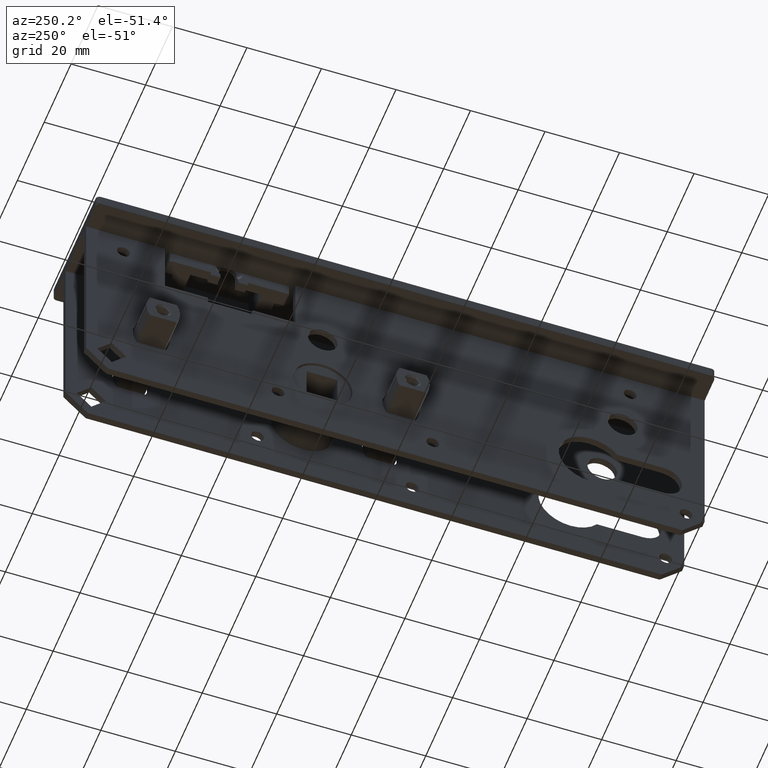
[diagram: clean part render]
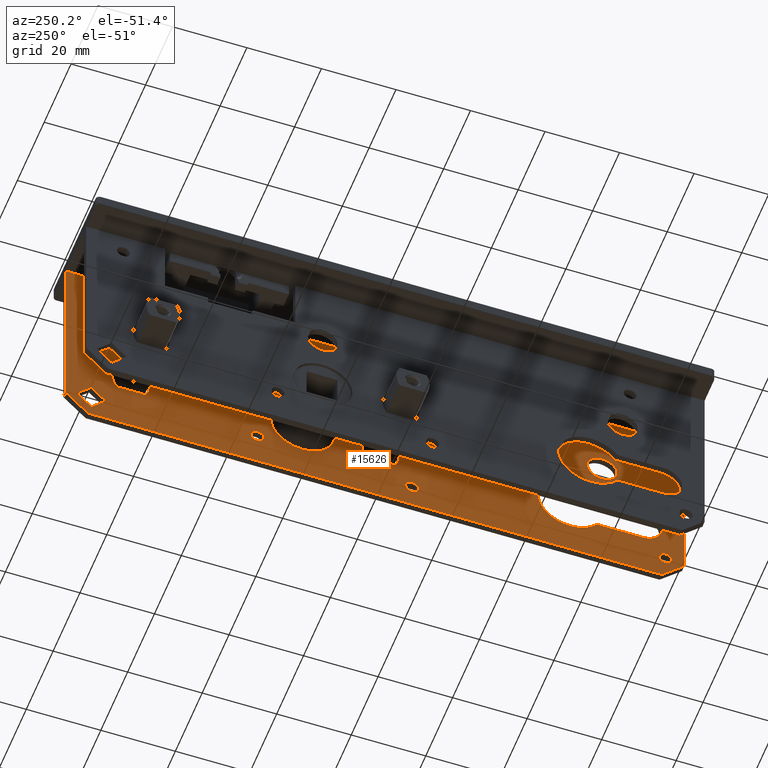
[diagram: same view with one face highlighted and labeled with its STEP entity id]
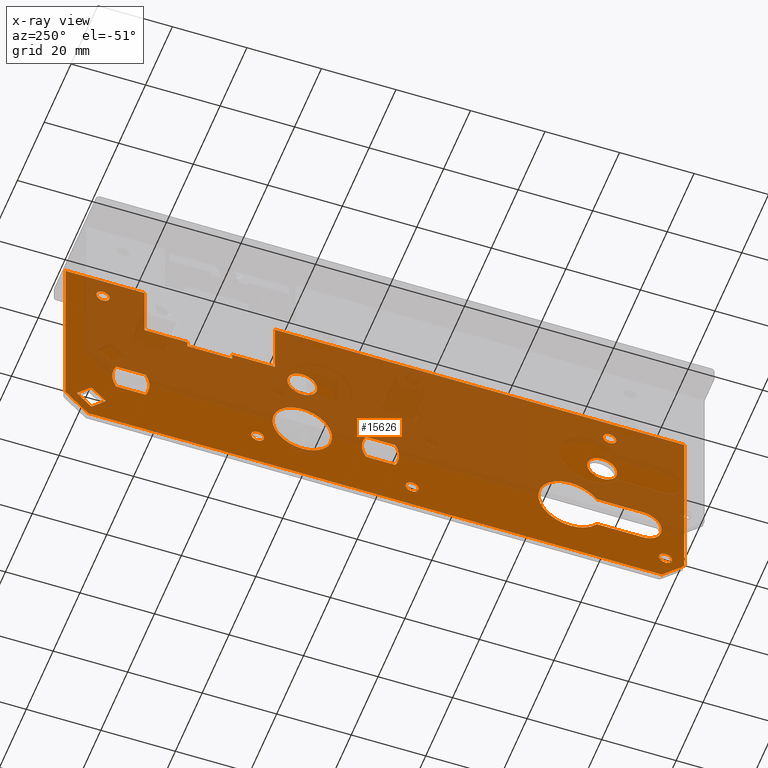
[diagram: x-ray of the same camera — body ghosted, the highlighted face saturated]
A machine part, auxiliary view. The second image highlights one B-rep face of the part: STEP entity #15626.
The next image is the same camera in x-ray: the body ghosted, the highlighted face saturated — about 60% of this face is hidden behind the body in this view.
In plain terms, the highlighted planar face has unit normal (1, -0, 0).
Its self-contained STEP definition (entity closure, byte-faithful):
#44 = CARTESIAN_POINT ( 'NONE',  ( 6.749999999999968026, 1.499999999999974465, -38.49999999999999289 ) ) ;
#150 = CIRCLE ( 'NONE', #21685, 8.000000000000007105 ) ;
#152 = VERTEX_POINT ( 'NONE', #18623 ) ;
#307 = CARTESIAN_POINT ( 'NONE',  ( 6.749999999999979572, 82.99999999999997158, -18.09999999999999076 ) ) ;
#315 = DIRECTION ( 'NONE',  ( -0.000000000000000000, -0.000000000000000000, 1.000000000000000000 ) ) ;
#347 = ORIENTED_EDGE ( 'NONE', *, *, #21794, .T. ) ;
#358 = VERTEX_POINT ( 'NONE', #11238 ) ;
#418 = CIRCLE ( 'NONE', #6160, 8.650000000000005684 ) ;
#441 = AXIS2_PLACEMENT_3D ( 'NONE', #18291, #21575, #19870 ) ;
#592 = AXIS2_PLACEMENT_3D ( 'NONE', #8462, #5016, #21658 ) ;
#726 = CARTESIAN_POINT ( 'NONE',  ( 6.749999999999979572, 82.99999999999998579, -1.500000000000000000 ) ) ;
#739 = CARTESIAN_POINT ( 'NONE',  ( 6.749999999999971578, 33.24999999999996447, -46.50000000000000000 ) ) ;
#756 = DIRECTION ( 'NONE',  ( 1.000000000000000000, -1.230009555171454603E-16, 0.000000000000000000 ) ) ;
#866 = CIRCLE ( 'NONE', #3154, 8.000000000000000000 ) ;
#925 = DIRECTION ( 'NONE',  ( 1.717547996016636297E-16, 1.000000000000000000, 0.000000000000000000 ) ) ;
#977 = FACE_BOUND ( 'NONE', #9563, .T. ) ;
#1065 = CIRCLE ( 'NONE', #13143, 1.749999999999996447 ) ;
#1121 = CARTESIAN_POINT ( 'NONE',  ( 6.749999999999978684, 72.22182540694797126, -49.61091270347398563 ) ) ;
#1205 = VERTEX_POINT ( 'NONE', #8249 ) ;
#1231 = ORIENTED_EDGE ( 'NONE', *, *, #14923, .T. ) ;
#1315 = DIRECTION ( 'NONE',  ( 1.230009555171454603E-16, 1.000000000000000000, 0.000000000000000000 ) ) ;
#1369 = EDGE_CURVE ( 'NONE', #15615, #3265, #11382, .T. ) ;
#1563 = VECTOR ( 'NONE', #8817, 1000.000000000000000 ) ;
#1574 = CARTESIAN_POINT ( 'NONE',  ( 6.749999999999978684, 73.00000000000000000, -7.500000000000007105 ) ) ;
#1757 = EDGE_LOOP ( 'NONE', ( #17173 ) ) ;
#1824 = ORIENTED_EDGE ( 'NONE', *, *, #10831, .T. ) ;
#1891 = VERTEX_POINT ( 'NONE', #12713 ) ;
#1905 = EDGE_CURVE ( 'NONE', #15615, #5013, #13957, .T. ) ;
#1977 = CARTESIAN_POINT ( 'NONE',  ( 6.749999999999975131, 38.34500000000000597, -18.10000000000000142 ) ) ;
#2011 = ORIENTED_EDGE ( 'NONE', *, *, #7604, .T. ) ;
#2205 = VECTOR ( 'NONE', #14447, 1000.000000000000000 ) ;
#2206 = CARTESIAN_POINT ( 'NONE',  ( 6.749999999999978684, 79.99999999999998579, -49.61091270347398563 ) ) ;
#2235 = VERTEX_POINT ( 'NONE', #9707 ) ;
#2255 = VERTEX_POINT ( 'NONE', #6798 ) ;
#2280 = ORIENTED_EDGE ( 'NONE', *, *, #17090, .T. ) ;
#2369 = CARTESIAN_POINT ( 'NONE',  ( 6.749999999999979572, 82.99999999999998579, -33.44999999999999574 ) ) ;
#2483 = EDGE_CURVE ( 'NONE', #21842, #8173, #3054, .T. ) ;
#2602 = AXIS2_PLACEMENT_3D ( 'NONE', #10785, #8873, #20649 ) ;
#2675 = CARTESIAN_POINT ( 'NONE',  ( 6.749999999999961808, -57.00000000000000711, -20.50000000000000355 ) ) ;
#2842 = ORIENTED_EDGE ( 'NONE', *, *, #10966, .T. ) ;
#2922 = VERTEX_POINT ( 'NONE', #12559 ) ;
#3037 = CARTESIAN_POINT ( 'NONE',  ( 6.749999999999978684, 69.42820323027548568, -34.50000000000000711 ) ) ;
#3050 = CARTESIAN_POINT ( 'NONE',  ( 6.749999999999973355, 26.84500000000000242, -16.50000000000000000 ) ) ;
#3054 = LINE ( 'NONE', #8511, #10534 ) ;
#3154 = AXIS2_PLACEMENT_3D ( 'NONE', #20338, #8637, #15333 ) ;
#3211 = DIRECTION ( 'NONE',  ( 0.000000000000000000, 1.000000000000000000, 0.000000000000000000 ) ) ;
#3265 = VERTEX_POINT ( 'NONE', #3418 ) ;
#3405 = DIRECTION ( 'NONE',  ( 1.000000000000000000, -1.230009555171454603E-16, 0.000000000000000000 ) ) ;
#3413 = DIRECTION ( 'NONE',  ( -0.000000000000000000, -0.000000000000000000, 1.000000000000000000 ) ) ;
#3418 = CARTESIAN_POINT ( 'NONE',  ( 6.749999999999978684, 77.00000000000000000, -56.50000000000000000 ) ) ;
#3435 = EDGE_CURVE ( 'NONE', #6235, #8173, #14757, .T. ) ;
#3470 = VERTEX_POINT ( 'NONE', #739 ) ;
#3564 = VECTOR ( 'NONE', #5631, 1000.000000000000000 ) ;
#3730 = EDGE_CURVE ( 'NONE', #12430, #18650, #17111, .T. ) ;
#3731 = VERTEX_POINT ( 'NONE', #2675 ) ;
#3779 = EDGE_CURVE ( 'NONE', #358, #21842, #17372, .T. ) ;
#3800 = ORIENTED_EDGE ( 'NONE', *, *, #8014, .T. ) ;
#3960 = CARTESIAN_POINT ( 'NONE',  ( 6.749999999999968026, -4.500000000000025757, -38.50000000000000000 ) ) ;
#4070 = LINE ( 'NONE', #6049, #9162 ) ;
#4092 = EDGE_CURVE ( 'NONE', #6755, #152, #13413, .T. ) ;
#4123 = CARTESIAN_POINT ( 'NONE',  ( 6.749999999999979572, 82.99999999999997158, -43.54999999999993321 ) ) ;
#4141 = DIRECTION ( 'NONE',  ( 1.230009555171454603E-16, 1.000000000000000000, 0.000000000000000000 ) ) ;
#4170 = ORIENTED_EDGE ( 'NONE', *, *, #20546, .T. ) ;
#4182 = VECTOR ( 'NONE', #19971, 1000.000000000000114 ) ;
#4198 = CARTESIAN_POINT ( 'NONE',  ( 6.749999999999957367, -78.00000000000002842, -49.50000000000000000 ) ) ;
#4291 = CARTESIAN_POINT ( 'NONE',  ( 6.749999999999975131, 500000.0000000000582, -16.50000000000000000 ) ) ;
#4326 = DIRECTION ( 'NONE',  ( -7.816872077406231083E-17, -0.7071067811865459074, 0.7071067811865491270 ) ) ;
#4384 = CARTESIAN_POINT ( 'NONE',  ( 6.749999999999960920, -59.52281994643178820, -33.44999999999999574 ) ) ;
#4405 = EDGE_LOOP ( 'NONE', ( #10033 ) ) ;
#4414 = EDGE_LOOP ( 'NONE', ( #347 ) ) ;
#4427 = EDGE_LOOP ( 'NONE', ( #2011, #11391, #8743, #5581 ) ) ;
#4447 = FACE_BOUND ( 'NONE', #4427, .T. ) ;
#4552 = LINE ( 'NONE', #2369, #21495 ) ;
#4647 = ORIENTED_EDGE ( 'NONE', *, *, #3435, .T. ) ;
#4658 = VERTEX_POINT ( 'NONE', #9148 ) ;
#4667 = EDGE_CURVE ( 'NONE', #358, #15644, #9023, .T. ) ;
#4696 = DIRECTION ( 'NONE',  ( -1.230009555171454603E-16, -1.000000000000000000, 0.000000000000000000 ) ) ;
#4708 = EDGE_CURVE ( 'NONE', #12034, #12034, #10337, .T. ) ;
#4735 = CARTESIAN_POINT ( 'NONE',  ( 6.749999999999973355, 26.84500000000000242, -1.500000000000000000 ) ) ;
#4780 = EDGE_CURVE ( 'NONE', #11503, #11503, #6316, .T. ) ;
#4783 = VERTEX_POINT ( 'NONE', #19569 ) ;
#4848 = DIRECTION ( 'NONE',  ( 1.002730332934569904E-16, 1.000000000000000000, 0.000000000000000000 ) ) ;
#4939 = EDGE_CURVE ( 'NONE', #9062, #6550, #418, .T. ) ;
#5013 = VERTEX_POINT ( 'NONE', #7181 ) ;
#5016 = DIRECTION ( 'NONE',  ( 1.000000000000000000, -1.230009555171454603E-16, 0.000000000000000000 ) ) ;
#5050 = CARTESIAN_POINT ( 'NONE',  ( 6.749999999999971578, 2.428203230275485680, -34.50000000000000000 ) ) ;
#5139 = DIRECTION ( 'NONE',  ( 1.084202172485503941E-16, 1.000000000000000000, 0.000000000000000000 ) ) ;
#5281 = VECTOR ( 'NONE', #11812, 1000.000000000000000 ) ;
#5318 = ORIENTED_EDGE ( 'NONE', *, *, #19510, .T. ) ;
#5457 = ORIENTED_EDGE ( 'NONE', *, *, #9716, .T. ) ;
#5540 = FACE_BOUND ( 'NONE', #4414, .T. ) ;
#5581 = ORIENTED_EDGE ( 'NONE', *, *, #12091, .T. ) ;
#5631 = DIRECTION ( 'NONE',  ( 1.230009555171454603E-16, 1.000000000000000000, 5.606199371646698603E-16 ) ) ;
#5825 = CARTESIAN_POINT ( 'NONE',  ( 6.749999999999957367, -76.25000000000002842, -49.50000000000000000 ) ) ;
#5867 = CARTESIAN_POINT ( 'NONE',  ( 6.749999999999979572, 82.99999999999998579, -42.49999999999999289 ) ) ;
#5876 = CARTESIAN_POINT ( 'NONE',  ( 6.749999999999975131, 62.49999999999997158, -38.50000000000000711 ) ) ;
#6049 = CARTESIAN_POINT ( 'NONE',  ( 6.749999999999978684, 78.05545635173697860, -51.55545635173699281 ) ) ;
#6051 = ORIENTED_EDGE ( 'NONE', *, *, #6621, .F. ) ;
#6083 = EDGE_CURVE ( 'NONE', #1891, #1891, #6337, .T. ) ;
#6089 = CARTESIAN_POINT ( 'NONE',  ( 6.749999999999961808, -77.00000000000004263, -56.50000000000000000 ) ) ;
#6129 = ORIENTED_EDGE ( 'NONE', *, *, #21860, .T. ) ;
#6160 = AXIS2_PLACEMENT_3D ( 'NONE', #18347, #15146, #4848 ) ;
#6235 = VERTEX_POINT ( 'NONE', #16500 ) ;
#6316 = CIRCLE ( 'NONE', #20153, 1.750000000000001554 ) ;
#6337 = CIRCLE ( 'NONE', #2602, 4.000000000000000000 ) ;
#6550 = VERTEX_POINT ( 'NONE', #4384 ) ;
#6621 = EDGE_CURVE ( 'NONE', #20840, #3265, #8480, .T. ) ;
#6684 = CARTESIAN_POINT ( 'NONE',  ( 6.749999999999971578, 2.428203230275486568, -42.49999999999999289 ) ) ;
#6755 = VERTEX_POINT ( 'NONE', #2206 ) ;
#6798 = CARTESIAN_POINT ( 'NONE',  ( 6.749999999999968914, -5.428203230275540747, -34.50000000000000000 ) ) ;
#6817 = VECTOR ( 'NONE', #3413, 1000.000000000000000 ) ;
#6870 = FACE_BOUND ( 'NONE', #21967, .T. ) ;
#6987 = CARTESIAN_POINT ( 'NONE',  ( 6.749999999999975131, 50.34500000000000597, -18.09999999999999787 ) ) ;
#7096 = CARTESIAN_POINT ( 'NONE',  ( 6.749999999999960920, -71.90000000000001990, -33.44999999999999574 ) ) ;
#7114 = VECTOR ( 'NONE', #16860, 1000.000000000000114 ) ;
#7134 = CARTESIAN_POINT ( 'NONE',  ( 6.749999999999960920, -59.52281994643178820, -43.55000000000001847 ) ) ;
#7181 = CARTESIAN_POINT ( 'NONE',  ( 6.749999999999979572, 82.99999999999998579, -1.500000000000000000 ) ) ;
#7218 = EDGE_CURVE ( 'NONE', #17224, #9729, #14778, .T. ) ;
#7314 = DIRECTION ( 'NONE',  ( -8.697480973859844836E-17, -0.7071067811865474617, -0.7071067811865474617 ) ) ;
#7388 = CARTESIAN_POINT ( 'NONE',  ( 6.749999999999979572, 84.94454364826299297, -54.55545635173699281 ) ) ;
#7395 = EDGE_LOOP ( 'NONE', ( #18364, #2842, #1231, #21062 ) ) ;
#7409 = FACE_BOUND ( 'NONE', #7395, .T. ) ;
#7604 = EDGE_CURVE ( 'NONE', #10503, #12430, #13525, .T. ) ;
#7637 = DIRECTION ( 'NONE',  ( -0.000000000000000000, -1.000000000000000000, -0.000000000000000000 ) ) ;
#7823 = LINE ( 'NONE', #726, #2205 ) ;
#7907 = AXIS2_PLACEMENT_3D ( 'NONE', #1574, #11867, #11942 ) ;
#8014 = EDGE_CURVE ( 'NONE', #4783, #9062, #19714, .T. ) ;
#8173 = VERTEX_POINT ( 'NONE', #4735 ) ;
#8249 = CARTESIAN_POINT ( 'NONE',  ( 6.749999999999975131, 61.84500000000525688, -16.50000000000000000 ) ) ;
#8386 = ORIENTED_EDGE ( 'NONE', *, *, #17969, .T. ) ;
#8462 = CARTESIAN_POINT ( 'NONE',  ( 6.749999999999960920, -61.00000000000001421, -20.50000000000000355 ) ) ;
#8470 = VERTEX_POINT ( 'NONE', #19465 ) ;
#8480 = LINE ( 'NONE', #19976, #14025 ) ;
#8511 = CARTESIAN_POINT ( 'NONE',  ( 6.749999999999973355, 26.84500000000000242, -56.50000000000000000 ) ) ;
#8525 = EDGE_LOOP ( 'NONE', ( #8386, #9741, #13737, #2280, #5318, #12890, #15249, #6051, #8671, #18115, #4647, #9786, #16705, #18499 ) ) ;
#8637 = DIRECTION ( 'NONE',  ( 1.000000000000000000, -1.230009555171454603E-16, 0.000000000000000000 ) ) ;
#8671 = ORIENTED_EDGE ( 'NONE', *, *, #14055, .T. ) ;
#8743 = ORIENTED_EDGE ( 'NONE', *, *, #9782, .T. ) ;
#8817 = DIRECTION ( 'NONE',  ( -5.334316127579277824E-31, -4.336808689942016158E-15, 1.000000000000000000 ) ) ;
#8831 = EDGE_CURVE ( 'NONE', #1205, #18944, #20098, .T. ) ;
#8873 = DIRECTION ( 'NONE',  ( 1.000000000000000000, -1.230009555171454603E-16, 0.000000000000000000 ) ) ;
#8959 = VECTOR ( 'NONE', #14656, 1000.000000000000000 ) ;
#9020 = CARTESIAN_POINT ( 'NONE',  ( 6.749999999999960920, -83.00000000000001421, -56.50000000000000000 ) ) ;
#9022 = FACE_BOUND ( 'NONE', #4405, .T. ) ;
#9023 = LINE ( 'NONE', #15637, #10870 ) ;
#9062 = VERTEX_POINT ( 'NONE', #7134 ) ;
#9148 = CARTESIAN_POINT ( 'NONE',  ( 6.749999999999978684, 69.42820323027548568, -42.50000000000000000 ) ) ;
#9162 = VECTOR ( 'NONE', #19770, 1000.000000000000114 ) ;
#9202 = DIRECTION ( 'NONE',  ( 1.000000000000000000, -1.230009555171454603E-16, 0.000000000000000000 ) ) ;
#9534 = EDGE_CURVE ( 'NONE', #21105, #18944, #17457, .T. ) ;
#9563 = EDGE_LOOP ( 'NONE', ( #3800, #16507, #14467, #5457 ) ) ;
#9575 = EDGE_LOOP ( 'NONE', ( #15785 ) ) ;
#9707 = CARTESIAN_POINT ( 'NONE',  ( 6.749999999999977796, 61.84500000000000597, -1.500000000000000000 ) ) ;
#9716 = EDGE_CURVE ( 'NONE', #13036, #4783, #16945, .T. ) ;
#9729 = VERTEX_POINT ( 'NONE', #12761 ) ;
#9741 = ORIENTED_EDGE ( 'NONE', *, *, #9534, .T. ) ;
#9782 = EDGE_CURVE ( 'NONE', #18650, #2255, #19579, .T. ) ;
#9786 = ORIENTED_EDGE ( 'NONE', *, *, #2483, .F. ) ;
#9791 = FACE_BOUND ( 'NONE', #18663, .T. ) ;
#9879 = VERTEX_POINT ( 'NONE', #21243 ) ;
#9910 = DIRECTION ( 'NONE',  ( 1.230009555171454603E-16, 1.000000000000000000, -0.000000000000000000 ) ) ;
#9954 = AXIS2_PLACEMENT_3D ( 'NONE', #44, #3405, #5139 ) ;
#10006 = EDGE_LOOP ( 'NONE', ( #12197 ) ) ;
#10033 = ORIENTED_EDGE ( 'NONE', *, *, #4708, .T. ) ;
#10116 = VECTOR ( 'NONE', #4696, 1000.000000000000000 ) ;
#10117 = CARTESIAN_POINT ( 'NONE',  ( 6.749999999999979572, 82.99999999999998579, -34.50000000000000711 ) ) ;
#10209 = EDGE_CURVE ( 'NONE', #8470, #6235, #15338, .T. ) ;
#10336 = FACE_BOUND ( 'NONE', #20478, .T. ) ;
#10337 = CIRCLE ( 'NONE', #21176, 1.750000000000001554 ) ;
#10355 = VECTOR ( 'NONE', #315, 1000.000000000000000 ) ;
#10443 = CIRCLE ( 'NONE', #7907, 1.750000000000001554 ) ;
#10503 = VERTEX_POINT ( 'NONE', #22026 ) ;
#10534 = VECTOR ( 'NONE', #21774, 1000.000000000000000 ) ;
#10650 = LINE ( 'NONE', #14475, #16699 ) ;
#10659 = ORIENTED_EDGE ( 'NONE', *, *, #7218, .T. ) ;
#10775 = DIRECTION ( 'NONE',  ( 0.000000000000000000, 0.000000000000000000, -1.000000000000000000 ) ) ;
#10785 = CARTESIAN_POINT ( 'NONE',  ( 6.749999999999971578, 19.49999999999997513, -20.50000000000000355 ) ) ;
#10831 = EDGE_CURVE ( 'NONE', #152, #17224, #15316, .T. ) ;
#10870 = VECTOR ( 'NONE', #10775, 1000.000000000000000 ) ;
#10966 = EDGE_CURVE ( 'NONE', #4658, #14147, #150, .T. ) ;
#11175 = CARTESIAN_POINT ( 'NONE',  ( 6.749999999999960920, -71.90000000000001990, -38.50000000000000000 ) ) ;
#11238 = CARTESIAN_POINT ( 'NONE',  ( 6.749999999999975131, 38.34499999999252395, -16.50000000000000000 ) ) ;
#11240 = CARTESIAN_POINT ( 'NONE',  ( 6.749999999999979572, 82.99999999999998579, -56.50000000000000000 ) ) ;
#11291 = VECTOR ( 'NONE', #1315, 1000.000000000000000 ) ;
#11366 = DIRECTION ( 'NONE',  ( 1.105472650720346645E-16, 1.000000000000000000, -0.000000000000000000 ) ) ;
#11382 = LINE ( 'NONE', #20465, #7114 ) ;
#11391 = ORIENTED_EDGE ( 'NONE', *, *, #3730, .T. ) ;
#11487 = VERTEX_POINT ( 'NONE', #15964 ) ;
#11503 = VERTEX_POINT ( 'NONE', #5825 ) ;
#11584 = AXIS2_PLACEMENT_3D ( 'NONE', #3960, #9202, #14273 ) ;
#11707 = CIRCLE ( 'NONE', #14209, 8.000000000000007105 ) ;
#11812 = DIRECTION ( 'NONE',  ( -1.230009555171454603E-16, -1.000000000000000000, 0.000000000000000000 ) ) ;
#11867 = DIRECTION ( 'NONE',  ( 1.000000000000000000, -1.230009555171454603E-16, 0.000000000000000000 ) ) ;
#11929 = CARTESIAN_POINT ( 'NONE',  ( 6.749999999999977796, 61.84500000000000597, -56.50000000000000000 ) ) ;
#11942 = DIRECTION ( 'NONE',  ( 0.000000000000000000, 1.000000000000000000, 0.000000000000000000 ) ) ;
#11992 = CARTESIAN_POINT ( 'NONE',  ( 6.749999999999976019, 50.34500000000017650, -56.50000000000014211 ) ) ;
#12034 = VERTEX_POINT ( 'NONE', #12777 ) ;
#12091 = EDGE_CURVE ( 'NONE', #2255, #10503, #21204, .T. ) ;
#12114 = PLANE ( 'NONE',  #14904 ) ;
#12197 = ORIENTED_EDGE ( 'NONE', *, *, #18599, .T. ) ;
#12430 = VERTEX_POINT ( 'NONE', #6684 ) ;
#12445 = FACE_BOUND ( 'NONE', #9575, .T. ) ;
#12559 = CARTESIAN_POINT ( 'NONE',  ( 6.749999999999972466, 27.49999999999997513, -38.50000000000000000 ) ) ;
#12578 = CARTESIAN_POINT ( 'NONE',  ( 6.749999999999960920, -63.00000000000001421, -7.500000000000007105 ) ) ;
#12713 = CARTESIAN_POINT ( 'NONE',  ( 6.749999999999972466, 23.49999999999997513, -20.50000000000000355 ) ) ;
#12761 = CARTESIAN_POINT ( 'NONE',  ( 6.749999999999978684, 76.11091270347397142, -53.50000000000000000 ) ) ;
#12777 = CARTESIAN_POINT ( 'NONE',  ( 6.749999999999960920, -61.25000000000001421, -7.500000000000007105 ) ) ;
#12890 = ORIENTED_EDGE ( 'NONE', *, *, #1905, .F. ) ;
#12901 = VECTOR ( 'NONE', #7637, 1000.000000000000000 ) ;
#13036 = VERTEX_POINT ( 'NONE', #7096 ) ;
#13138 = CARTESIAN_POINT ( 'NONE',  ( 6.749999999999979572, 81.05545635173697860, -58.44454364826300719 ) ) ;
#13143 = AXIS2_PLACEMENT_3D ( 'NONE', #19928, #16709, #3211 ) ;
#13377 = CARTESIAN_POINT ( 'NONE',  ( 6.749999999999975131, 61.57179676972446458, -42.50000000000000000 ) ) ;
#13413 = LINE ( 'NONE', #7388, #18930 ) ;
#13525 = LINE ( 'NONE', #5867, #21989 ) ;
#13644 = DIRECTION ( 'NONE',  ( 1.000000000000000000, -1.230009555171454603E-16, 0.000000000000000000 ) ) ;
#13676 = VECTOR ( 'NONE', #18018, 1000.000000000000000 ) ;
#13737 = ORIENTED_EDGE ( 'NONE', *, *, #8831, .F. ) ;
#13807 = DIRECTION ( 'NONE',  ( 1.230009555171454603E-16, 1.000000000000000000, 0.000000000000000000 ) ) ;
#13957 = LINE ( 'NONE', #11240, #8959 ) ;
#14025 = VECTOR ( 'NONE', #9910, 1000.000000000000000 ) ;
#14028 = FACE_BOUND ( 'NONE', #1757, .T. ) ;
#14055 = EDGE_CURVE ( 'NONE', #20840, #8470, #10650, .T. ) ;
#14129 = CARTESIAN_POINT ( 'NONE',  ( 6.749999999999975131, 500000.0000000000582, -16.50000000000000000 ) ) ;
#14147 = VERTEX_POINT ( 'NONE', #3037 ) ;
#14209 = AXIS2_PLACEMENT_3D ( 'NONE', #14437, #14519, #20999 ) ;
#14273 = DIRECTION ( 'NONE',  ( 1.084202172485504434E-16, 1.000000000000000000, 0.000000000000000000 ) ) ;
#14437 = CARTESIAN_POINT ( 'NONE',  ( 6.749999999999975131, 68.49999999999997158, -38.50000000000000711 ) ) ;
#14447 = DIRECTION ( 'NONE',  ( 1.230009555171454603E-16, 1.000000000000000000, -0.000000000000000000 ) ) ;
#14452 = ORIENTED_EDGE ( 'NONE', *, *, #4092, .T. ) ;
#14467 = ORIENTED_EDGE ( 'NONE', *, *, #21669, .T. ) ;
#14475 = CARTESIAN_POINT ( 'NONE',  ( 6.749999999999961808, -77.00000000000004263, -56.50000000000000000 ) ) ;
#14519 = DIRECTION ( 'NONE',  ( 1.000000000000000000, -1.230009555171454603E-16, 0.000000000000000000 ) ) ;
#14656 = DIRECTION ( 'NONE',  ( -0.000000000000000000, -0.000000000000000000, 1.000000000000000000 ) ) ;
#14757 = LINE ( 'NONE', #14791, #18693 ) ;
#14778 = LINE ( 'NONE', #13138, #4182 ) ;
#14791 = CARTESIAN_POINT ( 'NONE',  ( 6.749999999999973355, 26.84500000000000242, -1.500000000000000000 ) ) ;
#14859 = EDGE_CURVE ( 'NONE', #17108, #19255, #11707, .T. ) ;
#14904 = AXIS2_PLACEMENT_3D ( 'NONE', #15482, #13644, #13807 ) ;
#14923 = EDGE_CURVE ( 'NONE', #14147, #17108, #20065, .T. ) ;
#15146 = DIRECTION ( 'NONE',  ( 1.000000000000000000, -1.230009555171454603E-16, 0.000000000000000000 ) ) ;
#15249 = ORIENTED_EDGE ( 'NONE', *, *, #1369, .T. ) ;
#15316 = LINE ( 'NONE', #21793, #20584 ) ;
#15333 = DIRECTION ( 'NONE',  ( 1.084202172485504434E-16, 1.000000000000000000, 0.000000000000000000 ) ) ;
#15338 = LINE ( 'NONE', #9020, #10355 ) ;
#15482 = CARTESIAN_POINT ( 'NONE',  ( 6.749999999999979572, 82.99999999999998579, -56.50000000000000000 ) ) ;
#15497 = ORIENTED_EDGE ( 'NONE', *, *, #6083, .T. ) ;
#15498 = LINE ( 'NONE', #17822, #11291 ) ;
#15534 = EDGE_LOOP ( 'NONE', ( #6129 ) ) ;
#15615 = VERTEX_POINT ( 'NONE', #20480 ) ;
#15626 = ADVANCED_FACE ( 'NONE', ( #10336, #5540, #977, #18453, #14028, #16381, #12445, #9791, #9022, #7409, #4447, #6870, #17423 ), #12114, .F. ) ;
#15637 = CARTESIAN_POINT ( 'NONE',  ( 6.749999999999975131, 38.34500000000000597, -56.50000000000000000 ) ) ;
#15644 = VERTEX_POINT ( 'NONE', #1977 ) ;
#15735 = DIRECTION ( 'NONE',  ( -8.697480973859844836E-17, -0.7071067811865474617, 0.7071067811865474617 ) ) ;
#15785 = ORIENTED_EDGE ( 'NONE', *, *, #20294, .T. ) ;
#15964 = CARTESIAN_POINT ( 'NONE',  ( 6.749999999999968026, -8.250000000000026645, -49.50000000000000000 ) ) ;
#16128 = DIRECTION ( 'NONE',  ( 1.000000000000000000, -1.230009555171454603E-16, 0.000000000000000000 ) ) ;
#16260 = CARTESIAN_POINT ( 'NONE',  ( 6.749999999999979572, 82.99999999999998579, -34.50000000000000000 ) ) ;
#16381 = FACE_BOUND ( 'NONE', #15534, .T. ) ;
#16500 = CARTESIAN_POINT ( 'NONE',  ( 6.749999999999960920, -83.00000000000001421, -1.500000000000000000 ) ) ;
#16507 = ORIENTED_EDGE ( 'NONE', *, *, #4939, .T. ) ;
#16519 = CIRCLE ( 'NONE', #441, 1.749999999999994671 ) ;
#16580 = LINE ( 'NONE', #11929, #6817 ) ;
#16699 = VECTOR ( 'NONE', #4326, 1000.000000000000114 ) ;
#16705 = ORIENTED_EDGE ( 'NONE', *, *, #3779, .F. ) ;
#16709 = DIRECTION ( 'NONE',  ( 1.000000000000000000, -1.230009555171454603E-16, 0.000000000000000000 ) ) ;
#16819 = CARTESIAN_POINT ( 'NONE',  ( 6.749999999999977796, 61.57179676972446458, -34.50000000000000711 ) ) ;
#16860 = DIRECTION ( 'NONE',  ( -8.697480973859818952E-17, -0.7071067811865455743, -0.7071067811865495711 ) ) ;
#16945 = CIRCLE ( 'NONE', #18917, 5.050000000000013145 ) ;
#17090 = EDGE_CURVE ( 'NONE', #1205, #2235, #16580, .T. ) ;
#17108 = VERTEX_POINT ( 'NONE', #16819 ) ;
#17111 = CIRCLE ( 'NONE', #11584, 8.000000000000000000 ) ;
#17173 = ORIENTED_EDGE ( 'NONE', *, *, #4780, .T. ) ;
#17181 = ORIENTED_EDGE ( 'NONE', *, *, #21903, .T. ) ;
#17224 = VERTEX_POINT ( 'NONE', #1121 ) ;
#17330 = VECTOR ( 'NONE', #18563, 1000.000000000000000 ) ;
#17372 = LINE ( 'NONE', #14129, #12901 ) ;
#17392 = DIRECTION ( 'NONE',  ( -1.230009555171454603E-16, -1.000000000000000000, 0.000000000000000000 ) ) ;
#17423 = FACE_OUTER_BOUND ( 'NONE', #8525, .T. ) ;
#17457 = LINE ( 'NONE', #11992, #1563 ) ;
#17685 = DIRECTION ( 'NONE',  ( 1.084202172485503448E-16, 1.000000000000000000, 0.000000000000000000 ) ) ;
#17787 = DIRECTION ( 'NONE',  ( 0.000000000000000000, 1.000000000000000000, 0.000000000000000000 ) ) ;
#17822 = CARTESIAN_POINT ( 'NONE',  ( 6.749999999999979572, 82.99999999999998579, -42.50000000000000000 ) ) ;
#17969 = EDGE_CURVE ( 'NONE', #15644, #21105, #21845, .T. ) ;
#18018 = DIRECTION ( 'NONE',  ( -0.000000000000000000, -1.000000000000000000, -0.000000000000000000 ) ) ;
#18035 = CIRCLE ( 'NONE', #592, 4.000000000000003553 ) ;
#18115 = ORIENTED_EDGE ( 'NONE', *, *, #10209, .T. ) ;
#18291 = CARTESIAN_POINT ( 'NONE',  ( 6.749999999999971578, 31.49999999999997158, -46.50000000000000000 ) ) ;
#18347 = CARTESIAN_POINT ( 'NONE',  ( 6.749999999999960920, -52.50000000000002132, -38.50000000000000000 ) ) ;
#18364 = ORIENTED_EDGE ( 'NONE', *, *, #19638, .T. ) ;
#18453 = FACE_BOUND ( 'NONE', #10006, .T. ) ;
#18499 = ORIENTED_EDGE ( 'NONE', *, *, #4667, .T. ) ;
#18563 = DIRECTION ( 'NONE',  ( 1.230009555171454603E-16, 1.000000000000000000, 2.891205793294677833E-16 ) ) ;
#18599 = EDGE_CURVE ( 'NONE', #2922, #2922, #866, .T. ) ;
#18623 = CARTESIAN_POINT ( 'NONE',  ( 6.749999999999978684, 76.11091270347397142, -45.72182540694797837 ) ) ;
#18650 = VERTEX_POINT ( 'NONE', #5050 ) ;
#18663 = EDGE_LOOP ( 'NONE', ( #17181 ) ) ;
#18693 = VECTOR ( 'NONE', #11366, 1000.000000000000000 ) ;
#18917 = AXIS2_PLACEMENT_3D ( 'NONE', #11175, #19441, #925 ) ;
#18930 = VECTOR ( 'NONE', #15735, 1000.000000000000114 ) ;
#18944 = VERTEX_POINT ( 'NONE', #21895 ) ;
#19255 = VERTEX_POINT ( 'NONE', #13377 ) ;
#19441 = DIRECTION ( 'NONE',  ( 1.000000000000000000, -1.230009555171454603E-16, 0.000000000000000000 ) ) ;
#19465 = CARTESIAN_POINT ( 'NONE',  ( 6.749999999999960920, -83.00000000000001421, -50.49999999999999289 ) ) ;
#19510 = EDGE_CURVE ( 'NONE', #2235, #5013, #7823, .T. ) ;
#19569 = CARTESIAN_POINT ( 'NONE',  ( 6.749999999999960920, -71.90000000000001990, -43.55000000000001847 ) ) ;
#19579 = LINE ( 'NONE', #16260, #10116 ) ;
#19638 = EDGE_CURVE ( 'NONE', #19255, #4658, #15498, .T. ) ;
#19714 = LINE ( 'NONE', #4123, #3564 ) ;
#19770 = DIRECTION ( 'NONE',  ( 8.697480973859844836E-17, 0.7071067811865474617, 0.7071067811865474617 ) ) ;
#19870 = DIRECTION ( 'NONE',  ( 0.000000000000000000, 1.000000000000000000, 0.000000000000000000 ) ) ;
#19928 = CARTESIAN_POINT ( 'NONE',  ( 6.749999999999968026, -10.00000000000002309, -49.50000000000000000 ) ) ;
#19971 = DIRECTION ( 'NONE',  ( 8.697480973859844836E-17, 0.7071067811865474617, -0.7071067811865474617 ) ) ;
#19976 = CARTESIAN_POINT ( 'NONE',  ( 6.749999999999979572, 82.99999999999998579, -56.50000000000000000 ) ) ;
#20065 = LINE ( 'NONE', #10117, #5281 ) ;
#20098 = LINE ( 'NONE', #4291, #13676 ) ;
#20153 = AXIS2_PLACEMENT_3D ( 'NONE', #4198, #16128, #17787 ) ;
#20294 = EDGE_CURVE ( 'NONE', #3470, #3470, #16519, .T. ) ;
#20338 = CARTESIAN_POINT ( 'NONE',  ( 6.749999999999971578, 19.49999999999997513, -38.50000000000000000 ) ) ;
#20465 = CARTESIAN_POINT ( 'NONE',  ( 6.749999999999978684, 77.00000000000000000, -56.50000000000000000 ) ) ;
#20478 = EDGE_LOOP ( 'NONE', ( #15497 ) ) ;
#20480 = CARTESIAN_POINT ( 'NONE',  ( 6.749999999999979572, 82.99999999999998579, -50.49999999999997868 ) ) ;
#20546 = EDGE_CURVE ( 'NONE', #9729, #6755, #4070, .T. ) ;
#20584 = VECTOR ( 'NONE', #7314, 1000.000000000000114 ) ;
#20649 = DIRECTION ( 'NONE',  ( 2.168404344971008868E-16, 1.000000000000000000, 0.000000000000000000 ) ) ;
#20840 = VERTEX_POINT ( 'NONE', #6089 ) ;
#20999 = DIRECTION ( 'NONE',  ( 1.084202172485503448E-16, 1.000000000000000000, 0.000000000000000000 ) ) ;
#21003 = DIRECTION ( 'NONE',  ( 1.000000000000000000, -1.230009555171454603E-16, 0.000000000000000000 ) ) ;
#21062 = ORIENTED_EDGE ( 'NONE', *, *, #14859, .T. ) ;
#21105 = VERTEX_POINT ( 'NONE', #6987 ) ;
#21176 = AXIS2_PLACEMENT_3D ( 'NONE', #12578, #756, #21197 ) ;
#21197 = DIRECTION ( 'NONE',  ( 0.000000000000000000, 1.000000000000000000, 0.000000000000000000 ) ) ;
#21204 = CIRCLE ( 'NONE', #9954, 8.000000000000003553 ) ;
#21243 = CARTESIAN_POINT ( 'NONE',  ( 6.749999999999978684, 74.75000000000000000, -7.500000000000007105 ) ) ;
#21495 = VECTOR ( 'NONE', #17392, 1000.000000000000000 ) ;
#21575 = DIRECTION ( 'NONE',  ( 1.000000000000000000, -1.230009555171454603E-16, 0.000000000000000000 ) ) ;
#21658 = DIRECTION ( 'NONE',  ( 2.168404344971006896E-16, 1.000000000000000000, 0.000000000000000000 ) ) ;
#21669 = EDGE_CURVE ( 'NONE', #6550, #13036, #4552, .T. ) ;
#21685 = AXIS2_PLACEMENT_3D ( 'NONE', #5876, #21003, #17685 ) ;
#21774 = DIRECTION ( 'NONE',  ( -0.000000000000000000, -0.000000000000000000, 1.000000000000000000 ) ) ;
#21793 = CARTESIAN_POINT ( 'NONE',  ( 6.749999999999978684, 74.16636905521096423, -47.66636905521097844 ) ) ;
#21794 = EDGE_CURVE ( 'NONE', #3731, #3731, #18035, .T. ) ;
#21842 = VERTEX_POINT ( 'NONE', #3050 ) ;
#21845 = LINE ( 'NONE', #307, #17330 ) ;
#21860 = EDGE_CURVE ( 'NONE', #11487, #11487, #1065, .T. ) ;
#21895 = CARTESIAN_POINT ( 'NONE',  ( 6.749999999999975131, 50.34499999999999886, -16.49999999999999645 ) ) ;
#21903 = EDGE_CURVE ( 'NONE', #9879, #9879, #10443, .T. ) ;
#21967 = EDGE_LOOP ( 'NONE', ( #4170, #14452, #1824, #10659 ) ) ;
#21989 = VECTOR ( 'NONE', #4141, 1000.000000000000000 ) ;
#22026 = CARTESIAN_POINT ( 'NONE',  ( 6.749999999999968026, -5.428203230275540747, -42.49999999999999289 ) ) ;